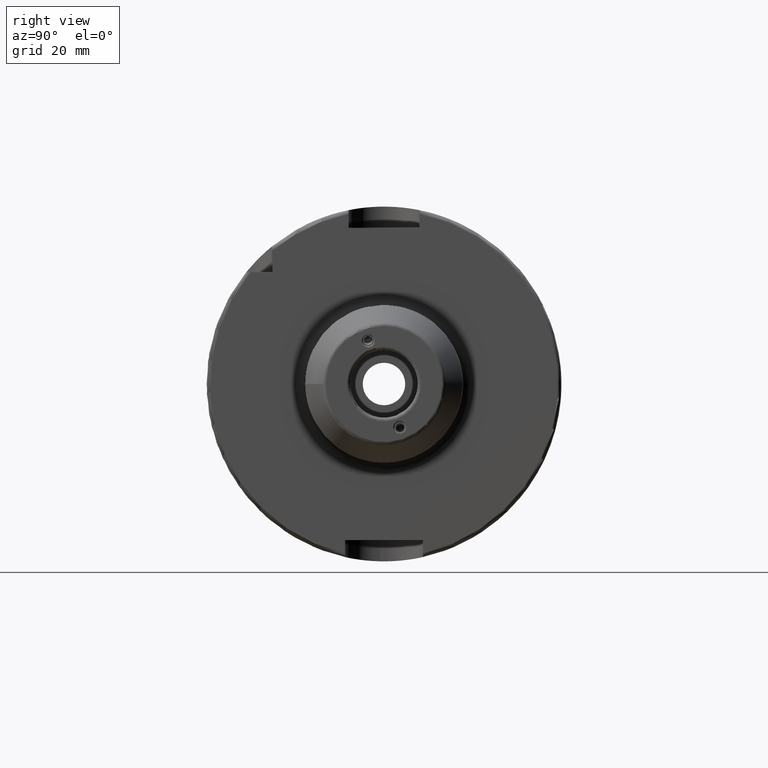
[diagram: clean part render]
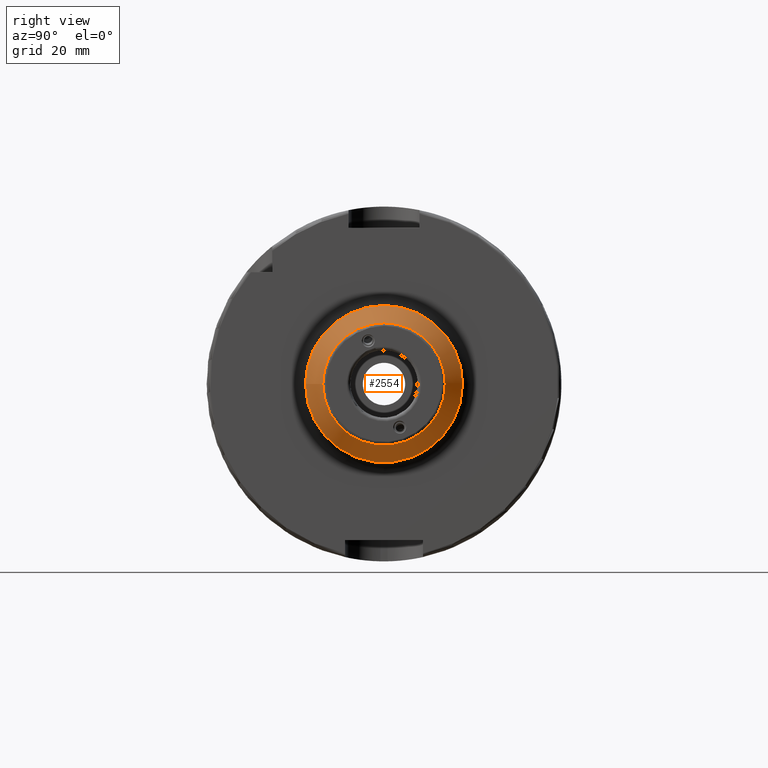
[diagram: same view with one face highlighted and labeled with its STEP entity id]
A machine part, right view. The second image highlights one B-rep face of the part: STEP entity #2554.
In plain terms, the highlighted conical surface has half-angle 25 deg.
Its self-contained STEP definition (entity closure, byte-faithful):
#74=CONICAL_SURFACE('',#2761,19.6125,0.436332312998582);
#180=LINE('',#4319,#304);
#304=VECTOR('',#3195,19.6125);
#446=CIRCLE('',#2758,17.2692375262292);
#447=CIRCLE('',#2759,17.2692375262292);
#448=CIRCLE('',#2760,17.2692375262292);
#449=CIRCLE('',#2762,22.1313077870366);
#450=CIRCLE('',#2763,22.1313077870366);
#451=CIRCLE('',#2764,22.1313077870366);
#650=FACE_OUTER_BOUND('',#794,.T.);
#794=EDGE_LOOP('',(#1884,#1885,#1886,#1887,#1888,#1889,#1890,#1891));
#1074=VERTEX_POINT('',#4310);
#1075=VERTEX_POINT('',#4312);
#1076=VERTEX_POINT('',#4314);
#1077=VERTEX_POINT('',#4318);
#1078=VERTEX_POINT('',#4320);
#1079=VERTEX_POINT('',#4322);
#1386=EDGE_CURVE('',#1074,#1075,#446,.T.);
#1387=EDGE_CURVE('',#1075,#1076,#447,.T.);
#1388=EDGE_CURVE('',#1076,#1074,#448,.T.);
#1389=EDGE_CURVE('',#1075,#1077,#180,.T.);
#1390=EDGE_CURVE('',#1078,#1077,#449,.T.);
#1391=EDGE_CURVE('',#1079,#1078,#450,.T.);
#1392=EDGE_CURVE('',#1077,#1079,#451,.T.);
#1884=ORIENTED_EDGE('',*,*,#1388,.F.);
#1885=ORIENTED_EDGE('',*,*,#1387,.F.);
#1886=ORIENTED_EDGE('',*,*,#1389,.T.);
#1887=ORIENTED_EDGE('',*,*,#1390,.F.);
#1888=ORIENTED_EDGE('',*,*,#1391,.F.);
#1889=ORIENTED_EDGE('',*,*,#1392,.F.);
#1890=ORIENTED_EDGE('',*,*,#1389,.F.);
#1891=ORIENTED_EDGE('',*,*,#1386,.F.);
#2554=ADVANCED_FACE('',(#650),#74,.T.);
#2758=AXIS2_PLACEMENT_3D('',#4313,#3187,#3188);
#2759=AXIS2_PLACEMENT_3D('',#4315,#3189,#3190);
#2760=AXIS2_PLACEMENT_3D('',#4316,#3191,#3192);
#2761=AXIS2_PLACEMENT_3D('',#4317,#3193,#3194);
#2762=AXIS2_PLACEMENT_3D('',#4321,#3196,#3197);
#2763=AXIS2_PLACEMENT_3D('',#4323,#3198,#3199);
#2764=AXIS2_PLACEMENT_3D('',#4324,#3200,#3201);
#3187=DIRECTION('center_axis',(1.,0.,0.));
#3188=DIRECTION('ref_axis',(0.,-1.,3.06161699786838E-17));
#3189=DIRECTION('center_axis',(1.,0.,0.));
#3190=DIRECTION('ref_axis',(0.,-1.,3.06161699786838E-17));
#3191=DIRECTION('center_axis',(1.,0.,0.));
#3192=DIRECTION('ref_axis',(0.,-1.,3.06161699786838E-17));
#3193=DIRECTION('center_axis',(-1.,0.,0.));
#3194=DIRECTION('ref_axis',(0.,1.,0.));
#3195=DIRECTION('',(-0.90630778703665,-0.422618261740699,-5.17558101501966E-17));
#3196=DIRECTION('center_axis',(-1.,0.,0.));
#3197=DIRECTION('ref_axis',(0.,-1.,3.06161699786838E-17));
#3198=DIRECTION('center_axis',(-1.,0.,0.));
#3199=DIRECTION('ref_axis',(0.,-1.,3.06161699786838E-17));
#3200=DIRECTION('center_axis',(-1.,0.,0.));
#3201=DIRECTION('ref_axis',(0.,-1.,3.06161699786838E-17));
#4310=CARTESIAN_POINT('',(99.4226182617407,-2.11487164602119E-15,17.2692375262292));
#4312=CARTESIAN_POINT('',(99.4226182617407,-17.2692375262292,-2.11487164602119E-15));
#4313=CARTESIAN_POINT('Origin',(99.4226182617407,0.,-2.64358955752649E-15));
#4314=CARTESIAN_POINT('',(99.4226182617407,17.2692375262292,-1.05743582301059E-15));
#4315=CARTESIAN_POINT('Origin',(99.4226182617407,0.,-2.64358955752649E-15));
#4316=CARTESIAN_POINT('Origin',(99.4226182617407,0.,-2.64358955752649E-15));
#4317=CARTESIAN_POINT('Origin',(94.3974756701688,0.,0.));
#4318=CARTESIAN_POINT('',(88.9958749394353,-22.1313077870366,-2.71030352423393E-15));
#4319=CARTESIAN_POINT('',(94.3974756701688,-19.6125,-2.40183853482775E-15));
#4320=CARTESIAN_POINT('',(88.9958749394353,22.1313077870366,-6.77575881058483E-15));
#4321=CARTESIAN_POINT('Origin',(88.9958749394353,0.,-3.38787940529241E-15));
#4322=CARTESIAN_POINT('',(88.9958749394353,-2.71030352423393E-15,22.1313077870366));
#4323=CARTESIAN_POINT('Origin',(88.9958749394353,0.,-3.38787940529241E-15));
#4324=CARTESIAN_POINT('Origin',(88.9958749394353,0.,-3.38787940529241E-15));